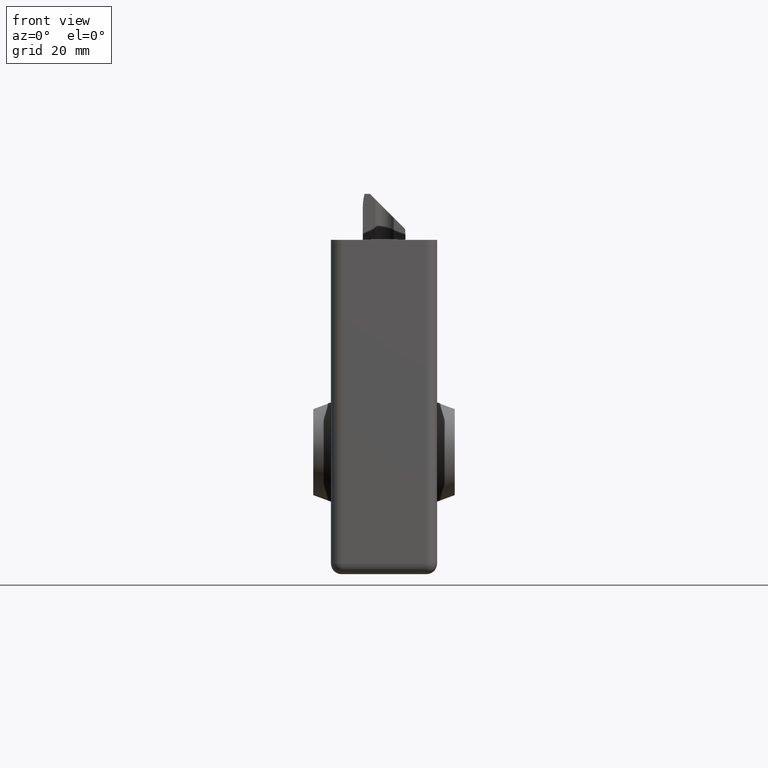
[diagram: clean part render]
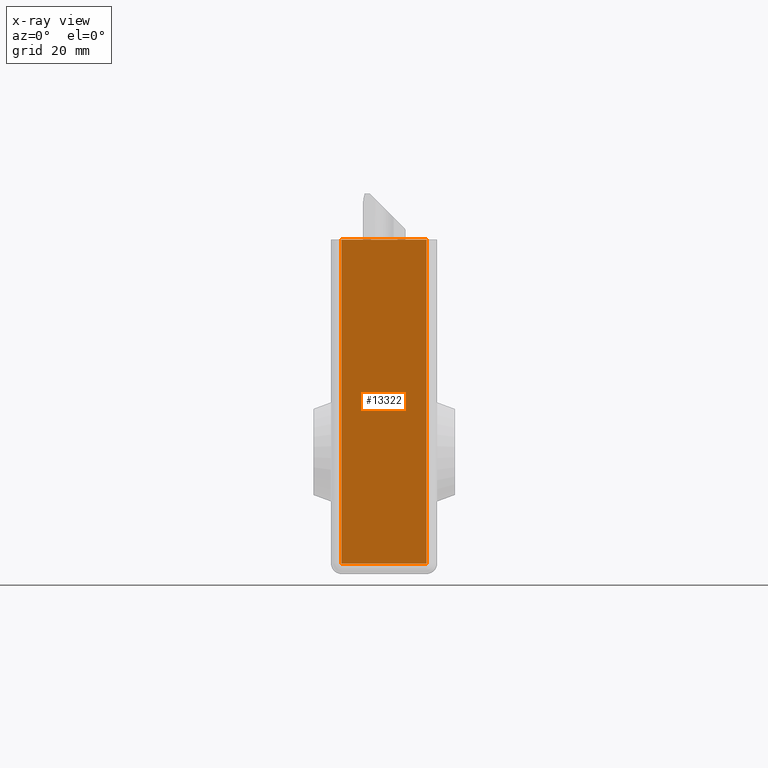
[diagram: x-ray — body ghosted, one internal face saturated and labeled with its STEP entity id]
A machine part, front view, then the same camera in x-ray: the body is ghosted and one INTERNAL B-rep face — a face not visible from any outside direction — is saturated and labeled: STEP entity #13322.
In plain terms, the highlighted planar face has unit normal (0, -1, 0).
Its self-contained STEP definition (entity closure, byte-faithful):
#279 = ORIENTED_EDGE ( 'NONE', *, *, #9502, .F. ) ;
#1023 = VERTEX_POINT ( 'NONE', #1853 ) ;
#1295 = LINE ( 'NONE', #11385, #9403 ) ;
#1853 = CARTESIAN_POINT ( 'NONE',  ( 12.00000000000000000, 83.49999999999997158, 47.25000000000000000 ) ) ;
#2008 = DIRECTION ( 'NONE',  ( -0.000000000000000000, 0.000000000000000000, 1.000000000000000000 ) ) ;
#2954 = VECTOR ( 'NONE', #24303, 1000.000000000000000 ) ;
#3584 = CARTESIAN_POINT ( 'NONE',  ( -12.00000000000000000, 83.49999999999997158, -44.25000000000000000 ) ) ;
#3670 = VERTEX_POINT ( 'NONE', #3584 ) ;
#4797 = VECTOR ( 'NONE', #13737, 1000.000000000000000 ) ;
#5295 = DIRECTION ( 'NONE',  ( 0.000000000000000000, -0.000000000000000000, -1.000000000000000000 ) ) ;
#6601 = VERTEX_POINT ( 'NONE', #17964 ) ;
#7326 = CARTESIAN_POINT ( 'NONE',  ( -12.00000000000000000, 83.49999999999997158, 47.25000000000000000 ) ) ;
#9278 = CARTESIAN_POINT ( 'NONE',  ( 15.00000000000000000, 83.49999999999997158, 47.25000000000000000 ) ) ;
#9403 = VECTOR ( 'NONE', #17041, 1000.000000000000000 ) ;
#9502 = EDGE_CURVE ( 'NONE', #6601, #3670, #12935, .T. ) ;
#9889 = VERTEX_POINT ( 'NONE', #21986 ) ;
#10870 = CARTESIAN_POINT ( 'NONE',  ( 15.00000000000000000, 83.49999999999997158, -44.25000000000000000 ) ) ;
#11385 = CARTESIAN_POINT ( 'NONE',  ( 15.00000000000000000, 83.49999999999997158, 47.25000000000000000 ) ) ;
#12935 = LINE ( 'NONE', #10870, #2954 ) ;
#13322 = ADVANCED_FACE ( 'NONE', ( #13679 ), #20597, .T. ) ;
#13679 = FACE_OUTER_BOUND ( 'NONE', #18375, .T. ) ;
#13737 = DIRECTION ( 'NONE',  ( 0.000000000000000000, -0.000000000000000000, -1.000000000000000000 ) ) ;
#13824 = EDGE_CURVE ( 'NONE', #3670, #9889, #20003, .T. ) ;
#14161 = ORIENTED_EDGE ( 'NONE', *, *, #16995, .F. ) ;
#14475 = LINE ( 'NONE', #23218, #4797 ) ;
#14854 = EDGE_CURVE ( 'NONE', #1023, #9889, #1295, .T. ) ;
#15120 = AXIS2_PLACEMENT_3D ( 'NONE', #9278, #20849, #5295 ) ;
#16995 = EDGE_CURVE ( 'NONE', #1023, #6601, #14475, .T. ) ;
#17041 = DIRECTION ( 'NONE',  ( -1.000000000000000000, 0.000000000000000000, 0.000000000000000000 ) ) ;
#17964 = CARTESIAN_POINT ( 'NONE',  ( 12.00000000000000000, 83.49999999999997158, -44.25000000000000000 ) ) ;
#18375 = EDGE_LOOP ( 'NONE', ( #279, #14161, #20785, #22136 ) ) ;
#20003 = LINE ( 'NONE', #7326, #22126 ) ;
#20597 = PLANE ( 'NONE',  #15120 ) ;
#20785 = ORIENTED_EDGE ( 'NONE', *, *, #14854, .T. ) ;
#20849 = DIRECTION ( 'NONE',  ( 0.000000000000000000, -1.000000000000000000, 0.000000000000000000 ) ) ;
#21986 = CARTESIAN_POINT ( 'NONE',  ( -12.00000000000000000, 83.49999999999997158, 47.25000000000000000 ) ) ;
#22126 = VECTOR ( 'NONE', #2008, 1000.000000000000000 ) ;
#22136 = ORIENTED_EDGE ( 'NONE', *, *, #13824, .F. ) ;
#23218 = CARTESIAN_POINT ( 'NONE',  ( 12.00000000000000000, 83.49999999999997158, 47.25000000000000000 ) ) ;
#24303 = DIRECTION ( 'NONE',  ( -1.000000000000000000, -0.000000000000000000, -0.000000000000000000 ) ) ;